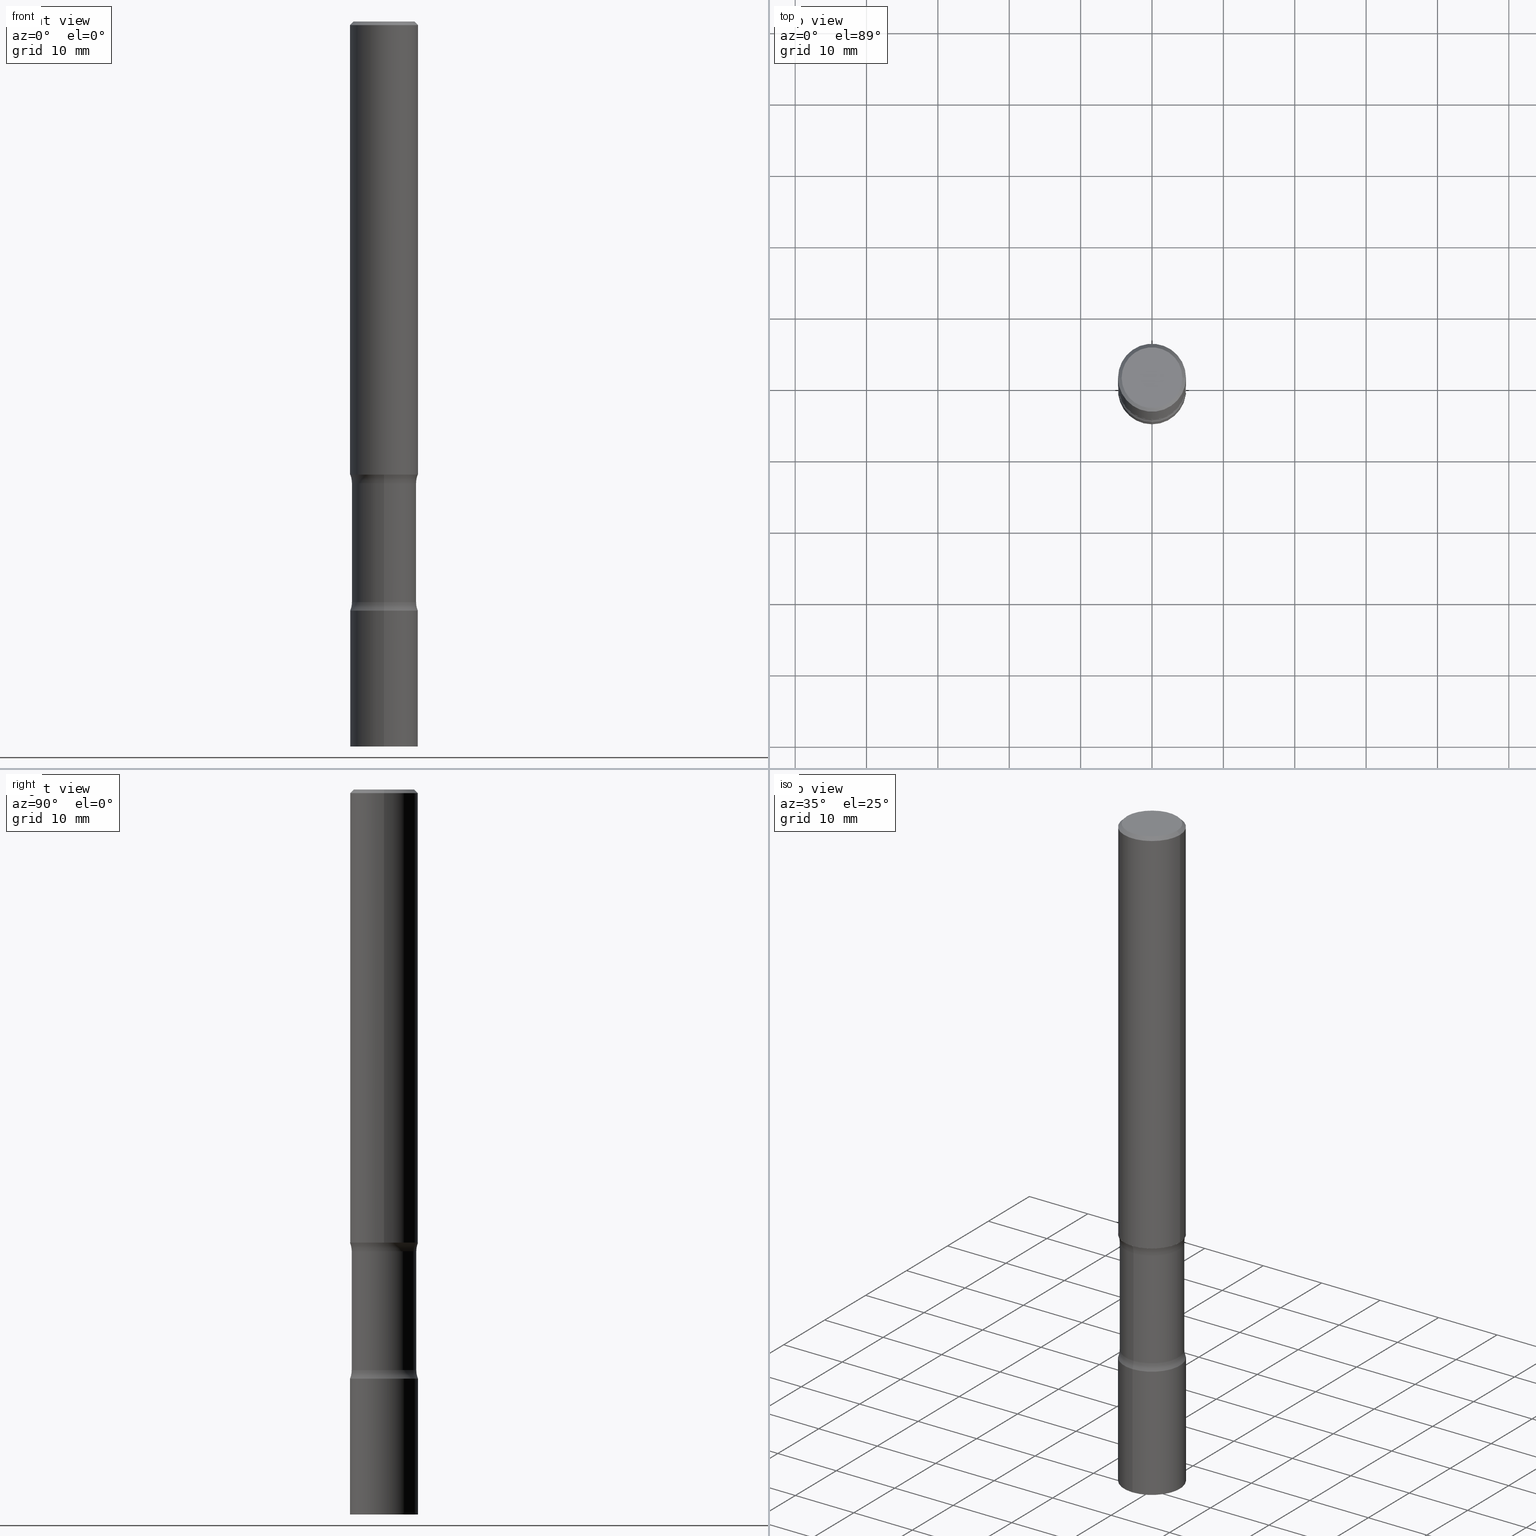
[diagram: canonical four-view strip — front | top / right | iso, engineering-drawing reading convention]
A machine part, canonical four-view strip (front | top / right | iso — engineering-drawing reading convention). The complete STEP part file that produces these views, byte-faithful:
ISO-10303-21;
HEADER;
FILE_DESCRIPTION (( 'STEP AP203' ),
    '1' );
FILE_NAME ('37831.STEP',
    '2024-03-11T13:26:31',
    ( '' ),
    ( '' ),
    'SwSTEP 2.0',
    'SolidWorks 2023',
    '' );
FILE_SCHEMA (( 'CONFIG_CONTROL_DESIGN' ));
ENDSEC;

DATA;
#1 = CIRCLE ( 'NONE', #12, 0.1875000000000001110 ) ;
#2 = ORIENTED_EDGE ( 'NONE', *, *, #37, .T. ) ;
#3 = DIRECTION ( 'NONE',  ( -1.000000000000000000, 6.982962677686265922E-15, -4.883557194083112340E-29 ) ) ;
#4 = PRODUCT_RELATED_PRODUCT_CATEGORY ( 'detail', '', ( #6 ) ) ;
#5 = DIRECTION ( 'NONE',  ( 2.572503713933696930E-29, -3.309560120569282320E-15, -1.000000000000000000 ) ) ;
#6 = PRODUCT ( '37831', '37831', '', ( #257 ) ) ;
#7 = CARTESIAN_POINT ( 'NONE',  ( 0.000000000000000000, 0.000000000000000000, 0.000000000000000000 ) ) ;
#8 = ORIENTED_EDGE ( 'NONE', *, *, #201, .F. ) ;
#9 = VERTEX_POINT ( 'NONE', #383 ) ;
#10 = ORIENTED_EDGE ( 'NONE', *, *, #300, .F. ) ;
#11 = DIRECTION ( 'NONE',  ( -2.445454306341708885E-29, 3.491502103444214095E-15, 1.000000000000000000 ) ) ;
#12 = AXIS2_PLACEMENT_3D ( 'NONE', #196, #200, #92 ) ;
#13 = CC_DESIGN_DATE_AND_TIME_ASSIGNMENT ( #103, #254, ( #108 ) ) ;
#14 = APPROVAL_PERSON_ORGANIZATION ( #209, #458, #494 ) ;
#15 = ORIENTED_EDGE ( 'NONE', *, *, #421, .T. ) ;
#16 = AXIS2_PLACEMENT_3D ( 'NONE', #223, #449, #39 ) ;
#17 =( CONVERSION_BASED_UNIT ( 'INCH', #95 ) LENGTH_UNIT ( ) NAMED_UNIT ( #374 ) );
#18 = ADVANCED_FACE ( 'NONE', ( #467 ), #182, .T. ) ;
#19 = APPLICATION_CONTEXT ( 'configuration controlled 3d designs of mechanical parts and assemblies' ) ;
#20 = DIRECTION ( 'NONE',  ( 2.572503713933696930E-29, -3.309560120569282320E-15, -1.000000000000000000 ) ) ;
#21 = ADVANCED_FACE ( 'NONE', ( #91 ), #140, .F. ) ;
#22 = CIRCLE ( 'NONE', #157, 0.1875000000000000555 ) ;
#23 = ADVANCED_FACE ( 'NONE', ( #372 ), #123, .F. ) ;
#24 = CARTESIAN_POINT ( 'NONE',  ( 9.877104281060825871E-29, -1.382955192662065686E-14, -4.000000000000000000 ) ) ;
#25 = VERTEX_POINT ( 'NONE', #110 ) ;
#26 = ORIENTED_EDGE ( 'NONE', *, *, #214, .F. ) ;
#27 = PERSON_AND_ORGANIZATION ( #431, #275 ) ;
#28 = CARTESIAN_POINT ( 'NONE',  ( 1.309305502066235948E-15, 0.1874999999999912847, -2.500000000000000444 ) ) ;
#29 = PRODUCT_DEFINITION ( 'UNKNOWN', '', #169, #379 ) ;
#30 = AXIS2_PLACEMENT_3D ( 'NONE', #228, #188, #229 ) ;
#31 = ORIENTED_EDGE ( 'NONE', *, *, #469, .T. ) ;
#32 = SECURITY_CLASSIFICATION_LEVEL ( 'unclassified' ) ;
#33 = CARTESIAN_POINT ( 'NONE',  ( 7.947726495610553875E-29, -1.134738183619369709E-14, -3.250000000000000000 ) ) ;
#34 = COORDINATED_UNIVERSAL_TIME_OFFSET ( 5, 0, .BEHIND. ) ;
#35 = FACE_OUTER_BOUND ( 'NONE', #410, .T. ) ;
#36 = ADVANCED_FACE ( 'NONE', ( #286 ), #292, .T. ) ;
#37 = EDGE_CURVE ( 'NONE', #435, #66, #274, .T. ) ;
#38 = CARTESIAN_POINT ( 'NONE',  ( 0.000000000000000000, 0.000000000000000000, 0.000000000000000000 ) ) ;
#39 = DIRECTION ( 'NONE',  ( 1.000000000000000000, -6.982962677686266711E-15, 0.000000000000000000 ) ) ;
#40 = CIRCLE ( 'NONE', #283, 0.1875000000000000555 ) ;
#41 = CARTESIAN_POINT ( 'NONE',  ( 0.000000000000000000, 0.000000000000000000, 0.000000000000000000 ) ) ;
#42 = EDGE_LOOP ( 'NONE', ( #213, #117 ) ) ;
#43 = PLANE ( 'NONE',  #245 ) ;
#44 = FACE_OUTER_BOUND ( 'NONE', #42, .T. ) ;
#45 = CC_DESIGN_PERSON_AND_ORGANIZATION_ASSIGNMENT ( #63, #73, ( #29 ) ) ;
#46 = LOCAL_TIME ( 9, 26, 31.00000000000000000, #368 ) ;
#47 = CARTESIAN_POINT ( 'NONE',  ( 2.116710561673711128E-15, 0.3031249999999910405, -2.547495887979910112 ) ) ;
#48 = FACE_OUTER_BOUND ( 'NONE', #244, .T. ) ;
#49 = ADVANCED_FACE ( 'NONE', ( #35 ), #407, .F. ) ;
#50 = ADVANCED_FACE ( 'NONE', ( #365 ), #508, .T. ) ;
#51 = CARTESIAN_POINT ( 'NONE',  ( 6.134439765035424862E-29, -9.031126753344712925E-15, -2.547495887979908780 ) ) ;
#52 = CIRCLE ( 'NONE', #429, 0.1875000000000000555 ) ;
#53 = PLANE ( 'NONE',  #226 ) ;
#54 = VECTOR ( 'NONE', #212, 39.37007874015748143 ) ;
#55 = DIRECTION ( 'NONE',  ( 1.000000000000000000, -6.860497997771530774E-15, 4.843026772000703432E-29 ) ) ;
#56 = EDGE_CURVE ( 'NONE', #246, #121, #322, .T. ) ;
#57 = EDGE_LOOP ( 'NONE', ( #349, #401, #422, #278 ) ) ;
#58 = CARTESIAN_POINT ( 'NONE',  ( 0.1874999999999999167, -1.309305502066174219E-15, 9.142831454617375408E-30 ) ) ;
#59 = AXIS2_PLACEMENT_3D ( 'NONE', #340, #5, #305 ) ;
#60 = VERTEX_POINT ( 'NONE', #100 ) ;
#61 = APPROVAL_ROLE ( '' ) ;
#62 = EDGE_CURVE ( 'NONE', #66, #435, #329, .T. ) ;
#63 = PERSON_AND_ORGANIZATION ( #431, #275 ) ;
#64 = CARTESIAN_POINT ( 'NONE',  ( -1.222026205852955807E-15, -0.1781250000000139389, -3.999999999999999556 ) ) ;
#65 = EDGE_LOOP ( 'NONE', ( #260, #168, #436, #261 ) ) ;
#66 = VERTEX_POINT ( 'NONE', #258 ) ;
#67 = PERSON_AND_ORGANIZATION ( #431, #275 ) ;
#68 = DIRECTION ( 'NONE',  ( 6.982962677686265133E-15, 1.000000000000000000, -3.067338098149347116E-15 ) ) ;
#69 = ORIENTED_EDGE ( 'NONE', *, *, #171, .F. ) ;
#70 = APPROVAL_PERSON_ORGANIZATION ( #406, #166, #61 ) ;
#71 = DIRECTION ( 'NONE',  ( 1.000000000000000000, 0.000000000000000000, 0.000000000000000000 ) ) ;
#72 = CARTESIAN_POINT ( 'NONE',  ( 6.140532058385174757E-29, -9.022402242516065970E-15, -2.547495887979908780 ) ) ;
#73 = PERSON_AND_ORGANIZATION_ROLE ( 'creator' ) ;
#74 = FACE_OUTER_BOUND ( 'NONE', #280, .T. ) ;
#75 = CYLINDRICAL_SURFACE ( 'NONE', #99, 0.1874999999999999167 ) ;
#76 = AXIS2_PLACEMENT_3D ( 'NONE', #324, #90, #272 ) ;
#77 = CC_DESIGN_APPROVAL ( #458, ( #169 ) ) ;
#78 = CONICAL_SURFACE ( 'NONE', #353, 0.1874999999999998057, 0.7853981633974480570 ) ;
#79 = ORIENTED_EDGE ( 'NONE', *, *, #412, .T. ) ;
#80 = CARTESIAN_POINT ( 'NONE',  ( -0.1874999999999998057, 1.239475875289310724E-15, -0.02000000000000000042 ) ) ;
#81 = CC_DESIGN_DATE_AND_TIME_ASSIGNMENT ( #443, #402, ( #29 ) ) ;
#82 = CARTESIAN_POINT ( 'NONE',  ( 1.169646248512448412E-15, 0.1674999999999998157, -5.848231242562262767E-16 ) ) ;
#83 = CARTESIAN_POINT ( 'NONE',  ( -1.286343374582082690E-15, -0.1875000000000113798, -3.249999999999999556 ) ) ;
#84 = ORIENTED_EDGE ( 'NONE', *, *, #266, .T. ) ;
#85 = PLANE ( 'NONE',  #450 ) ;
#86 = ORIENTED_EDGE ( 'NONE', *, *, #469, .F. ) ;
#87 = CC_DESIGN_PERSON_AND_ORGANIZATION_ASSIGNMENT ( #27, #490, ( #6 ) ) ;
#88 = EDGE_LOOP ( 'NONE', ( #291, #484, #96, #474 ) ) ;
#89 = DIRECTION ( 'NONE',  ( -2.445468806185136597E-29, 3.491481338843145583E-15, 1.000000000000000000 ) ) ;
#90 = DIRECTION ( 'NONE',  ( 2.572503713933696369E-29, -3.309560120569282320E-15, -1.000000000000000000 ) ) ;
#91 = FACE_OUTER_BOUND ( 'NONE', #446, .T. ) ;
#92 = DIRECTION ( 'NONE',  ( 6.982962677686266711E-15, 1.000000000000000000, -2.913971193241879189E-15 ) ) ;
#93 = EDGE_CURVE ( 'NONE', #202, #309, #52, .T. ) ;
#94 = EDGE_LOOP ( 'NONE', ( #317, #84, #172, #131 ) ) ;
#95 = LENGTH_MEASURE_WITH_UNIT ( LENGTH_MEASURE( 0.02539999999999999897 ), #273 );
#96 = ORIENTED_EDGE ( 'NONE', *, *, #327, .T. ) ;
#97 = DIRECTION ( 'NONE',  ( -6.982962677686265922E-15, -1.000000000000000000, 2.913971193241880372E-15 ) ) ;
#98 = AXIS2_PLACEMENT_3D ( 'NONE', #295, #453, #224 ) ;
#99 = AXIS2_PLACEMENT_3D ( 'NONE', #41, #137, #441 ) ;
#100 = CARTESIAN_POINT ( 'NONE',  ( 1.332267629550276595E-15, 0.1874999999999860389, -4.000000000000000888 ) ) ;
#101 = LINE ( 'NONE', #403, #178 ) ;
#102 = ORIENTED_EDGE ( 'NONE', *, *, #93, .T. ) ;
#103 = DATE_AND_TIME ( #221, #386 ) ;
#104 = FACE_OUTER_BOUND ( 'NONE', #88, .T. ) ;
#105 = VECTOR ( 'NONE', #132, 39.37007874015748143 ) ;
#106 = CIRCLE ( 'NONE', #269, 0.1875000000000001110 ) ;
#107 = EDGE_CURVE ( 'NONE', #363, #248, #101, .T. ) ;
#108 = SECURITY_CLASSIFICATION ( '', '', #32 ) ;
#109 = DIRECTION ( 'NONE',  ( -6.982962677686265922E-15, -1.000000000000000000, 3.491502103444214095E-15 ) ) ;
#110 = CARTESIAN_POINT ( 'NONE',  ( 0.1674999999999998157, -1.252653207992877105E-15, 8.469775550109232378E-30 ) ) ;
#111 = EDGE_CURVE ( 'NONE', #309, #202, #479, .T. ) ;
#112 = DIRECTION ( 'NONE',  ( 2.445468806185136597E-29, -3.491481338843145583E-15, -1.000000000000000000 ) ) ;
#113 = DIRECTION ( 'NONE',  ( 6.860497997771529985E-15, 1.000000000000000000, 0.000000000000000000 ) ) ;
#114 = VECTOR ( 'NONE', #415, 39.37007874015748143 ) ;
#115 = DIRECTION ( 'NONE',  ( -6.982962677686267499E-15, -1.000000000000000000, 0.000000000000000000 ) ) ;
#116 = DIRECTION ( 'NONE',  ( -6.982962677686265922E-15, -1.000000000000000000, 2.913971193241879977E-15 ) ) ;
#117 = ORIENTED_EDGE ( 'NONE', *, *, #300, .T. ) ;
#118 = CARTESIAN_POINT ( 'NONE',  ( -0.1874999999999999167, 1.332267629550187257E-15, -9.223003294227943787E-30 ) ) ;
#119 = AXIS2_PLACEMENT_3D ( 'NONE', #276, #55, #243 ) ;
#120 = EDGE_LOOP ( 'NONE', ( #156, #310 ) ) ;
#121 = VERTEX_POINT ( 'NONE', #457 ) ;
#122 = CARTESIAN_POINT ( 'NONE',  ( 9.781875224740546387E-29, -1.396592535537258233E-14, -4.000000000000000000 ) ) ;
#123 = PLANE ( 'NONE',  #282 ) ;
#124 = DIRECTION ( 'NONE',  ( -2.445454306341708885E-29, 3.491502103444214095E-15, 1.000000000000000000 ) ) ;
#125 = EDGE_CURVE ( 'NONE', #60, #363, #315, .T. ) ;
#126 = CIRCLE ( 'NONE', #16, 0.1874999999999998057 ) ;
#127 = CARTESIAN_POINT ( 'NONE',  ( 9.781817225366835538E-29, -1.396600841377685480E-14, -4.000000000000000000 ) ) ;
#128 = CC_DESIGN_APPROVAL ( #166, ( #29 ) ) ;
#129 = DIRECTION ( 'NONE',  ( -2.572503713933696369E-29, 3.309560120569282320E-15, 1.000000000000000000 ) ) ;
#130 = CARTESIAN_POINT ( 'NONE',  ( 7.825543147385660996E-29, -1.119019133944436529E-14, -3.202504112020091664 ) ) ;
#131 = ORIENTED_EDGE ( 'NONE', *, *, #421, .F. ) ;
#132 = DIRECTION ( 'NONE',  ( -2.445468806185136877E-29, 3.491481338843145188E-15, 1.000000000000000000 ) ) ;
#133 = ADVANCED_FACE ( 'NONE', ( #74 ), #227, .F. ) ;
#134 = ORIENTED_EDGE ( 'NONE', *, *, #171, .T. ) ;
#135 = ORIENTED_EDGE ( 'NONE', *, *, #62, .F. ) ;
#136 = AXIS2_PLACEMENT_3D ( 'NONE', #409, #180, #400 ) ;
#137 = DIRECTION ( 'NONE',  ( -2.445468806185136597E-29, 3.491481338843145583E-15, 1.000000000000000000 ) ) ;
#138 = CIRCLE ( 'NONE', #256, 0.1674999999999998157 ) ;
#139 = APPROVAL_PERSON_ORGANIZATION ( #497, #355, #293 ) ;
#140 = TOROIDAL_SURFACE ( 'NONE', #98, 0.3031250000000000888, 0.1250000000000000555 ) ;
#141 = APPROVAL_STATUS ( 'not_yet_approved' ) ;
#142 = DIRECTION ( 'NONE',  ( -2.445468806185136597E-29, 3.491481338843145583E-15, 1.000000000000000000 ) ) ;
#143 = ORIENTED_EDGE ( 'NONE', *, *, #336, .T. ) ;
#144 = ORIENTED_EDGE ( 'NONE', *, *, #501, .T. ) ;
#145 = ADVANCED_BREP_SHAPE_REPRESENTATION ( '37831', ( #391, #234, #230, #430 ), #294 ) ;
#146 = PERSON_AND_ORGANIZATION_ROLE ( 'creator' ) ;
#147 = DIRECTION ( 'NONE',  ( 6.982962677686266711E-15, 1.000000000000000000, -3.309560120569282320E-15 ) ) ;
#148 = APPROVAL_STATUS ( 'not_yet_approved' ) ;
#149 = CARTESIAN_POINT ( 'NONE',  ( 0.000000000000000000, 0.000000000000000000, 0.000000000000000000 ) ) ;
#150 = CARTESIAN_POINT ( 'NONE',  ( 6.140532058385174757E-29, -9.022402242516065970E-15, -2.547495887979908780 ) ) ;
#151 = TOROIDAL_SURFACE ( 'NONE', #303, 0.3031250000000000888, 0.1250000000000000555 ) ;
#152 = DATE_AND_TIME ( #486, #314 ) ;
#153 = DIRECTION ( 'NONE',  ( 2.572503713933696930E-29, -3.309560120569282320E-15, -1.000000000000000000 ) ) ;
#154 = CARTESIAN_POINT ( 'NONE',  ( -0.1674999999999998157, 1.204561061900879469E-15, -8.301862719484101980E-30 ) ) ;
#155 = DIRECTION ( 'NONE',  ( 1.000000000000000000, -6.860497997771530774E-15, 4.843026772000703432E-29 ) ) ;
#156 = ORIENTED_EDGE ( 'NONE', *, *, #308, .T. ) ;
#157 = AXIS2_PLACEMENT_3D ( 'NONE', #466, #346, #116 ) ;
#158 = ORIENTED_EDGE ( 'NONE', *, *, #482, .T. ) ;
#159 = DIRECTION ( 'NONE',  ( -2.445468806185136597E-29, 3.491481338843145583E-15, 1.000000000000000000 ) ) ;
#160 = DIRECTION ( 'NONE',  ( -6.982962677686265922E-15, -1.000000000000000000, 2.913971193241879977E-15 ) ) ;
#161 = EDGE_CURVE ( 'NONE', #476, #9, #126, .T. ) ;
#162 = DIRECTION ( 'NONE',  ( 2.572503713933696930E-29, -3.309560120569282320E-15, -1.000000000000000000 ) ) ;
#163 = AXIS2_PLACEMENT_3D ( 'NONE', #195, #348, #471 ) ;
#164 = CARTESIAN_POINT ( 'NONE',  ( 0.000000000000000000, 0.000000000000000000, 0.000000000000000000 ) ) ;
#165 = CARTESIAN_POINT ( 'NONE',  ( -1.309305502066077189E-15, -0.1875000000000139888, -3.999999999999999556 ) ) ;
#166 = APPROVAL ( #141, 'UNSPECIFIED' ) ;
#167 = CYLINDRICAL_SURFACE ( 'NONE', #352, 0.1781250000000000888 ) ;
#168 = ORIENTED_EDGE ( 'NONE', *, *, #239, .T. ) ;
#169 = PRODUCT_DEFINITION_FORMATION_WITH_SPECIFIED_SOURCE ( 'ANY', '', #6, .NOT_KNOWN. ) ;
#170 = LINE ( 'NONE', #58, #105 ) ;
#171 = EDGE_CURVE ( 'NONE', #60, #426, #503, .T. ) ;
#172 = ORIENTED_EDGE ( 'NONE', *, *, #161, .F. ) ;
#173 = DIRECTION ( 'NONE',  ( 6.982962677686265133E-15, 1.000000000000000000, -3.067338098149346722E-15 ) ) ;
#174 = EDGE_LOOP ( 'NONE', ( #211, #361 ) ) ;
#175 = APPLICATION_PROTOCOL_DEFINITION ( 'international standard', 'config_control_design', 1994, #19 ) ;
#176 = DIRECTION ( 'NONE',  ( -2.445468806185136597E-29, 3.491481338843145583E-15, 1.000000000000000000 ) ) ;
#177 = CIRCLE ( 'NONE', #242, 0.1875000000000000278 ) ;
#178 = VECTOR ( 'NONE', #376, 39.37007874015748143 ) ;
#179 = ADVANCED_FACE ( 'NONE', ( #104 ), #78, .T. ) ;
#180 = DIRECTION ( 'NONE',  ( -2.445454306341708885E-29, 3.491502103444214095E-15, 1.000000000000000000 ) ) ;
#181 = APPROVAL_DATE_TIME ( #362, #458 ) ;
#182 = CYLINDRICAL_SURFACE ( 'NONE', #302, 0.1875000000000000555 ) ;
#183 = DIRECTION ( 'NONE',  ( 1.000000000000000000, -6.982962677686265922E-15, 4.876176775795935793E-29 ) ) ;
#184 = PERSON_AND_ORGANIZATION ( #431, #275 ) ;
#185 = CARTESIAN_POINT ( 'NONE',  ( 1.332267629550188046E-15, 0.1875000000000000555, -6.546566443957903155E-16 ) ) ;
#186 = ADVANCED_FACE ( 'NONE', ( #259 ), #75, .T. ) ;
#187 = DIRECTION ( 'NONE',  ( 6.982962677686265922E-15, 1.000000000000000000, -2.913971193241879977E-15 ) ) ;
#188 = DIRECTION ( 'NONE',  ( 2.572503713933696930E-29, -3.309560120569282320E-15, -1.000000000000000000 ) ) ;
#189 = DIRECTION ( 'NONE',  ( 2.445454306341708044E-29, -3.491502103444214490E-15, -1.000000000000000000 ) ) ;
#190 = LOCAL_TIME ( 9, 26, 31.00000000000000000, #440 ) ;
#191 = PRODUCT_DEFINITION_SHAPE ( 'NONE', 'NONE',  #29 ) ;
#192 = DIRECTION ( 'NONE',  ( 0.7071067811865473507, -7.319954787623256045E-15, -0.7071067811865476838 ) ) ;
#193 = ORIENTED_EDGE ( 'NONE', *, *, #266, .F. ) ;
#194 = EDGE_CURVE ( 'NONE', #66, #357, #249, .T. ) ;
#195 = CARTESIAN_POINT ( 'NONE',  ( 7.831623907624765469E-29, -1.118148334468659010E-14, -3.202504112020091664 ) ) ;
#196 = CARTESIAN_POINT ( 'NONE',  ( 6.018348710160281878E-29, -8.865211745766734169E-15, -2.500000000000000000 ) ) ;
#197 = VERTEX_POINT ( 'NONE', #28 ) ;
#198 = VECTOR ( 'NONE', #217, 39.37007874015748143 ) ;
#199 = AXIS2_PLACEMENT_3D ( 'NONE', #164, #247, #478 ) ;
#200 = DIRECTION ( 'NONE',  ( 2.572503713933696930E-29, -3.309560120569282320E-15, -1.000000000000000000 ) ) ;
#201 = EDGE_CURVE ( 'NONE', #202, #357, #438, .T. ) ;
#202 = VERTEX_POINT ( 'NONE', #83 ) ;
#203 = ORIENTED_EDGE ( 'NONE', *, *, #475, .F. ) ;
#204 = CARTESIAN_POINT ( 'NONE',  ( 0.000000000000000000, 0.000000000000000000, 0.000000000000000000 ) ) ;
#205 = ORIENTED_EDGE ( 'NONE', *, *, #56, .T. ) ;
#206 =( NAMED_UNIT ( * ) PLANE_ANGLE_UNIT ( ) SI_UNIT ( $, .RADIAN. ) );
#207 = TOROIDAL_SURFACE ( 'NONE', #163, 0.3031249999999999778, 0.1249999999999999029 ) ;
#208 = CARTESIAN_POINT ( 'NONE',  ( 1.243840226962945341E-15, 0.1781249999999889311, -3.202504112020092553 ) ) ;
#209 = PERSON_AND_ORGANIZATION ( #431, #275 ) ;
#210 = EDGE_LOOP ( 'NONE', ( #460, #102 ) ) ;
#211 = ORIENTED_EDGE ( 'NONE', *, *, #306, .F. ) ;
#212 = DIRECTION ( 'NONE',  ( 2.572503713933696930E-29, -3.309560120569282320E-15, -1.000000000000000000 ) ) ;
#213 = ORIENTED_EDGE ( 'NONE', *, *, #232, .T. ) ;
#214 = EDGE_CURVE ( 'NONE', #9, #476, #480, .T. ) ;
#215 = ORIENTED_EDGE ( 'NONE', *, *, #336, .F. ) ;
#216 = PERSON_AND_ORGANIZATION_ROLE ( 'design_supplier' ) ;
#217 = DIRECTION ( 'NONE',  ( -2.445454306341709165E-29, 3.491502103444214490E-15, 1.000000000000000000 ) ) ;
#218 = CIRCLE ( 'NONE', #119, 0.1250000000000000278 ) ;
#219 = ADVANCED_FACE ( 'NONE', ( #44 ), #43, .F. ) ;
#220 = CARTESIAN_POINT ( 'NONE',  ( 6.113672015462842613E-29, -8.728703347107864943E-15, -2.500000000000000000 ) ) ;
#221 = CALENDAR_DATE ( 2024, 11, 3 ) ;
#222 = DIRECTION ( 'NONE',  ( -2.445454306341708885E-29, 3.491502103444214095E-15, 1.000000000000000000 ) ) ;
#223 = CARTESIAN_POINT ( 'NONE',  ( 4.890937612370273159E-31, -6.982962677686291609E-17, -0.02000000000000000042 ) ) ;
#224 = DIRECTION ( 'NONE',  ( 6.982962677686266711E-15, 1.000000000000000000, -3.309560120569282320E-15 ) ) ;
#225 = CARTESIAN_POINT ( 'NONE',  ( 4.890937612370273159E-31, -6.982962677686291609E-17, -0.02000000000000000042 ) ) ;
#226 = AXIS2_PLACEMENT_3D ( 'NONE', #122, #432, #395 ) ;
#227 = TOROIDAL_SURFACE ( 'NONE', #377, 0.3031249999999999778, 0.1249999999999999029 ) ;
#228 = CARTESIAN_POINT ( 'NONE',  ( 7.825543147385660996E-29, -1.119019133944436529E-14, -3.202504112020091664 ) ) ;
#229 = DIRECTION ( 'NONE',  ( 6.982962677686265133E-15, 1.000000000000000000, -3.067338098149345539E-15 ) ) ;
#230 = MANIFOLD_SOLID_BREP ( 'Body-Move/Copy2[4]', #404 ) ;
#231 = DIRECTION ( 'NONE',  ( 1.000000000000000000, -6.982962677686266711E-15, 0.000000000000000000 ) ) ;
#232 = EDGE_CURVE ( 'NONE', #248, #426, #40, .T. ) ;
#233 = VECTOR ( 'NONE', #192, 39.37007874015748143 ) ;
#234 = MANIFOLD_SOLID_BREP ( 'Body-Move/Copy2[2]', #489 ) ;
#235 = DIRECTION ( 'NONE',  ( -1.000000000000000000, 6.982962677686265922E-15, -4.876176775795935793E-29 ) ) ;
#236 = ORIENTED_EDGE ( 'NONE', *, *, #287, .F. ) ;
#237 = CARTESIAN_POINT ( 'NONE',  ( -2.079588455574416777E-15, -0.3031250000000111355, -3.202504112020090776 ) ) ;
#238 = ORIENTED_EDGE ( 'NONE', *, *, #194, .T. ) ;
#239 = EDGE_CURVE ( 'NONE', #25, #476, #301, .T. ) ;
#240 = DIRECTION ( 'NONE',  ( 1.000000000000000000, -6.982962677686266711E-15, 0.000000000000000000 ) ) ;
#241 = AXIS2_PLACEMENT_3D ( 'NONE', #225, #444, #328 ) ;
#242 = AXIS2_PLACEMENT_3D ( 'NONE', #319, #89, #240 ) ;
#243 = DIRECTION ( 'NONE',  ( 6.860497997771532351E-15, 1.000000000000000000, 0.000000000000000000 ) ) ;
#244 = EDGE_LOOP ( 'NONE', ( #417, #481, #445, #507 ) ) ;
#245 = AXIS2_PLACEMENT_3D ( 'NONE', #506, #189, #414 ) ;
#246 = VERTEX_POINT ( 'NONE', #382 ) ;
#247 = DIRECTION ( 'NONE',  ( -2.445468806185136597E-29, 3.491481338843145583E-15, 1.000000000000000000 ) ) ;
#248 = VERTEX_POINT ( 'NONE', #262 ) ;
#249 = LINE ( 'NONE', #64, #54 ) ;
#250 = ADVANCED_FACE ( 'NONE', ( #268 ), #85, .F. ) ;
#251 = APPLICATION_PROTOCOL_DEFINITION ( 'international standard', 'config_control_design', 1994, #468 ) ;
#252 = DIRECTION ( 'NONE',  ( 2.572503713933696930E-29, -3.309560120569282320E-15, -1.000000000000000000 ) ) ;
#253 = EDGE_LOOP ( 'NONE', ( #193, #205, #15, #26 ) ) ;
#254 = DATE_TIME_ROLE ( 'classification_date' ) ;
#255 = DIRECTION ( 'NONE',  ( -1.000000000000000000, 6.982962677686266711E-15, 0.000000000000000000 ) ) ;
#256 = AXIS2_PLACEMENT_3D ( 'NONE', #7, #389, #270 ) ;
#257 = MECHANICAL_CONTEXT ( 'NONE', #468, 'mechanical' ) ;
#258 = CARTESIAN_POINT ( 'NONE',  ( -1.254184790217548239E-15, -0.1781250000000090816, -2.547495887979908336 ) ) ;
#259 = FACE_OUTER_BOUND ( 'NONE', #253, .T. ) ;
#260 = ORIENTED_EDGE ( 'NONE', *, *, #360, .F. ) ;
#261 = ORIENTED_EDGE ( 'NONE', *, *, #327, .F. ) ;
#262 = CARTESIAN_POINT ( 'NONE',  ( -1.309305502066095728E-15, -0.1875000000000113798, -3.249999999999999556 ) ) ;
#263 = CIRCLE ( 'NONE', #385, 0.1781250000000001443 ) ;
#264 = CLOSED_SHELL ( 'NONE', ( #18, #427, #219, #378 ) ) ;
#265 = CARTESIAN_POINT ( 'NONE',  ( 6.018348710160281878E-29, -8.865211745766734169E-15, -2.500000000000000000 ) ) ;
#266 = EDGE_CURVE ( 'NONE', #246, #9, #343, .T. ) ;
#267 = DIRECTION ( 'NONE',  ( 6.982962677686266711E-15, 1.000000000000000000, -2.913971193241879189E-15 ) ) ;
#268 = FACE_OUTER_BOUND ( 'NONE', #120, .T. ) ;
#269 = AXIS2_PLACEMENT_3D ( 'NONE', #265, #162, #267 ) ;
#270 = DIRECTION ( 'NONE',  ( 1.000000000000000000, -6.982962677686266711E-15, 4.876176775795936914E-29 ) ) ;
#271 = ADVANCED_FACE ( 'NONE', ( #384 ), #418, .T. ) ;
#272 = DIRECTION ( 'NONE',  ( 6.982962677686265922E-15, 1.000000000000000000, -3.309560120569282320E-15 ) ) ;
#273 =( LENGTH_UNIT ( ) NAMED_UNIT ( * ) SI_UNIT ( $, .METRE. ) );
#274 = CIRCLE ( 'NONE', #312, 0.1781250000000000611 ) ;
#275 = ORGANIZATION ( 'UNSPECIFIED', 'UNSPECIFIED', '' ) ;
#276 = CARTESIAN_POINT ( 'NONE',  ( -2.079588455574434131E-15, -0.3031250000000090816, -2.547495887979907891 ) ) ;
#277 = EDGE_LOOP ( 'NONE', ( #2, #238, #86, #347 ) ) ;
#278 = ORIENTED_EDGE ( 'NONE', *, *, #332, .F. ) ;
#279 = CARTESIAN_POINT ( 'NONE',  ( 2.116710561673727694E-15, 0.3031249999999888201, -3.202504112020092997 ) ) ;
#280 = EDGE_LOOP ( 'NONE', ( #8, #433, #144, #31 ) ) ;
#281 = DIRECTION ( 'NONE',  ( -6.982962677686265922E-15, -1.000000000000000000, 3.491502103444214095E-15 ) ) ;
#282 = AXIS2_PLACEMENT_3D ( 'NONE', #366, #129, #455 ) ;
#283 = AXIS2_PLACEMENT_3D ( 'NONE', #307, #419, #160 ) ;
#284 = CALENDAR_DATE ( 2024, 11, 3 ) ;
#285 = CC_DESIGN_SECURITY_CLASSIFICATION ( #108, ( #169 ) ) ;
#286 = FACE_OUTER_BOUND ( 'NONE', #94, .T. ) ;
#287 = EDGE_CURVE ( 'NONE', #435, #197, #313, .T. ) ;
#288 = DATE_AND_TIME ( #284, #46 ) ;
#289 = CARTESIAN_POINT ( 'NONE',  ( 7.831623907624765469E-29, -1.118148334468659010E-14, -3.202504112020091664 ) ) ;
#290 = EDGE_LOOP ( 'NONE', ( #135, #158, #79, #236 ) ) ;
#291 = ORIENTED_EDGE ( 'NONE', *, *, #239, .F. ) ;
#292 = CYLINDRICAL_SURFACE ( 'NONE', #461, 0.1874999999999999167 ) ;
#293 = APPROVAL_ROLE ( '' ) ;
#294 =( GEOMETRIC_REPRESENTATION_CONTEXT ( 3 ) GLOBAL_UNCERTAINTY_ASSIGNED_CONTEXT ( ( #454 ) ) GLOBAL_UNIT_ASSIGNED_CONTEXT ( ( #17, #206, #326 ) ) REPRESENTATION_CONTEXT ( 'NONE', 'WORKASPACE' ) );
#295 = CARTESIAN_POINT ( 'NONE',  ( 6.134439765035424862E-29, -9.031126753344712925E-15, -2.547495887979908780 ) ) ;
#296 = DIRECTION ( 'NONE',  ( -2.438088387897960049E-29, 3.491481338843145188E-15, 1.000000000000000000 ) ) ;
#297 = APPROVAL_DATE_TIME ( #152, #355 ) ;
#298 = DIRECTION ( 'NONE',  ( 6.982962677686265133E-15, 1.000000000000000000, -3.067338098149347116E-15 ) ) ;
#299 = LINE ( 'NONE', #80, #114 ) ;
#300 = EDGE_CURVE ( 'NONE', #426, #248, #22, .T. ) ;
#301 = LINE ( 'NONE', #380, #233 ) ;
#302 = AXIS2_PLACEMENT_3D ( 'NONE', #149, #222, #109 ) ;
#303 = AXIS2_PLACEMENT_3D ( 'NONE', #51, #459, #505 ) ;
#304 = ADVANCED_FACE ( 'NONE', ( #48 ), #207, .F. ) ;
#305 = DIRECTION ( 'NONE',  ( 6.982962677686265133E-15, 1.000000000000000000, -3.067338098149346722E-15 ) ) ;
#306 = EDGE_CURVE ( 'NONE', #197, #381, #106, .T. ) ;
#307 = CARTESIAN_POINT ( 'NONE',  ( 7.947726495610553875E-29, -1.134738183619369709E-14, -3.250000000000000000 ) ) ;
#308 = EDGE_CURVE ( 'NONE', #321, #25, #138, .T. ) ;
#309 = VERTEX_POINT ( 'NONE', #423 ) ;
#310 = ORIENTED_EDGE ( 'NONE', *, *, #360, .T. ) ;
#311 = DIRECTION ( 'NONE',  ( -2.445468806185136877E-29, 3.491481338843145188E-15, 1.000000000000000000 ) ) ;
#312 = AXIS2_PLACEMENT_3D ( 'NONE', #72, #487, #298 ) ;
#313 = CIRCLE ( 'NONE', #499, 0.1250000000000000278 ) ;
#314 = LOCAL_TIME ( 9, 26, 31.00000000000000000, #452 ) ;
#315 = CIRCLE ( 'NONE', #136, 0.1875000000000000278 ) ;
#316 = CARTESIAN_POINT ( 'NONE',  ( 1.332267629550285667E-15, 0.1874999999999887035, -3.250000000000000444 ) ) ;
#317 = ORIENTED_EDGE ( 'NONE', *, *, #475, .T. ) ;
#318 = DIRECTION ( 'NONE',  ( 6.982962677686265133E-15, 1.000000000000000000, -3.067338098149345539E-15 ) ) ;
#319 = CARTESIAN_POINT ( 'NONE',  ( 6.113672015462842613E-29, -8.728703347107864943E-15, -2.500000000000000000 ) ) ;
#320 = ADVANCED_FACE ( 'NONE', ( #464 ), #151, .F. ) ;
#321 = VERTEX_POINT ( 'NONE', #154 ) ;
#322 = CIRCLE ( 'NONE', #344, 0.1875000000000000278 ) ;
#323 = AXIS2_PLACEMENT_3D ( 'NONE', #127, #11, #97 ) ;
#324 = CARTESIAN_POINT ( 'NONE',  ( 6.113672015462842613E-29, -8.728703347107864943E-15, -2.500000000000000000 ) ) ;
#325 = CYLINDRICAL_SURFACE ( 'NONE', #488, 0.1875000000000000555 ) ;
#326 =( NAMED_UNIT ( * ) SI_UNIT ( $, .STERADIAN. ) SOLID_ANGLE_UNIT ( ) );
#327 = EDGE_CURVE ( 'NONE', #321, #9, #299, .T. ) ;
#328 = DIRECTION ( 'NONE',  ( -1.000000000000000000, 6.982962677686266711E-15, 0.000000000000000000 ) ) ;
#329 = CIRCLE ( 'NONE', #394, 0.1781250000000000611 ) ;
#330 = ORIENTED_EDGE ( 'NONE', *, *, #125, .T. ) ;
#331 = PERSON_AND_ORGANIZATION_ROLE ( 'classification_officer' ) ;
#332 = EDGE_CURVE ( 'NONE', #357, #442, #338, .T. ) ;
#333 = PERSON_AND_ORGANIZATION ( #431, #275 ) ;
#334 = CARTESIAN_POINT ( 'NONE',  ( 7.947726495610553875E-29, -1.134738183619369709E-14, -3.250000000000000000 ) ) ;
#335 = EDGE_CURVE ( 'NONE', #435, #442, #341, .T. ) ;
#336 = EDGE_CURVE ( 'NONE', #363, #60, #358, .T. ) ;
#337 = COORDINATED_UNIVERSAL_TIME_OFFSET ( 5, 0, .BEHIND. ) ;
#338 = CIRCLE ( 'NONE', #30, 0.1781250000000001443 ) ;
#339 = CARTESIAN_POINT ( 'NONE',  ( 4.890937612370273159E-31, -6.982962677686291609E-17, -0.02000000000000000042 ) ) ;
#340 = CARTESIAN_POINT ( 'NONE',  ( 9.877104281060825871E-29, -1.382955192662065686E-14, -4.000000000000000000 ) ) ;
#341 = LINE ( 'NONE', #428, #462 ) ;
#342 = ORIENTED_EDGE ( 'NONE', *, *, #107, .T. ) ;
#343 = LINE ( 'NONE', #118, #393 ) ;
#344 = AXIS2_PLACEMENT_3D ( 'NONE', #369, #142, #491 ) ;
#345 = AXIS2_PLACEMENT_3D ( 'NONE', #237, #155, #113 ) ;
#346 = DIRECTION ( 'NONE',  ( -2.445454306341708885E-29, 3.491502103444214095E-15, 1.000000000000000000 ) ) ;
#347 = ORIENTED_EDGE ( 'NONE', *, *, #335, .F. ) ;
#348 = DIRECTION ( 'NONE',  ( 2.572503713933696930E-29, -3.309560120569282320E-15, -1.000000000000000000 ) ) ;
#349 = ORIENTED_EDGE ( 'NONE', *, *, #194, .F. ) ;
#350 = PLANE ( 'NONE',  #76 ) ;
#351 = AXIS2_PLACEMENT_3D ( 'NONE', #220, #296, #183 ) ;
#352 = AXIS2_PLACEMENT_3D ( 'NONE', #24, #473, #173 ) ;
#353 = AXIS2_PLACEMENT_3D ( 'NONE', #339, #112, #255 ) ;
#354 = CARTESIAN_POINT ( 'NONE',  ( -1.254184790217529701E-15, -0.1781250000000113298, -3.202504112020091220 ) ) ;
#355 = APPROVAL ( #148, 'UNSPECIFIED' ) ;
#356 = CARTESIAN_POINT ( 'NONE',  ( 1.243840226962927986E-15, 0.1781249999999910405, -2.547495887979909224 ) ) ;
#357 = VERTEX_POINT ( 'NONE', #354 ) ;
#358 = CIRCLE ( 'NONE', #323, 0.1875000000000000278 ) ;
#359 = CARTESIAN_POINT ( 'NONE',  ( 0.1874999999999998057, -1.356173001359023691E-15, -0.02000000000000000042 ) ) ;
#360 = EDGE_CURVE ( 'NONE', #25, #321, #413, .T. ) ;
#361 = ORIENTED_EDGE ( 'NONE', *, *, #412, .F. ) ;
#362 = DATE_AND_TIME ( #448, #397 ) ;
#363 = VERTEX_POINT ( 'NONE', #165 ) ;
#364 = DIRECTION ( 'NONE',  ( 0.000000000000000000, 0.000000000000000000, 1.000000000000000000 ) ) ;
#365 = FACE_OUTER_BOUND ( 'NONE', #65, .T. ) ;
#366 = CARTESIAN_POINT ( 'NONE',  ( 7.947773620101693940E-29, -1.134731435124022443E-14, -3.250000000000000000 ) ) ;
#367 = ORIENTED_EDGE ( 'NONE', *, *, #37, .F. ) ;
#368 = COORDINATED_UNIVERSAL_TIME_OFFSET ( 5, 0, .BEHIND. ) ;
#369 = CARTESIAN_POINT ( 'NONE',  ( 6.113672015462842613E-29, -8.728703347107864943E-15, -2.500000000000000000 ) ) ;
#370 = APPROVAL_DATE_TIME ( #288, #166 ) ;
#371 = CARTESIAN_POINT ( 'NONE',  ( 0.000000000000000000, 0.000000000000000000, 0.000000000000000000 ) ) ;
#372 = FACE_OUTER_BOUND ( 'NONE', #210, .T. ) ;
#373 = DIRECTION ( 'NONE',  ( 6.982962677686265922E-15, 1.000000000000000000, -2.913971193241879977E-15 ) ) ;
#374 = DIMENSIONAL_EXPONENTS ( 1.000000000000000000, 0.000000000000000000, 0.000000000000000000, 0.000000000000000000, 0.000000000000000000, 0.000000000000000000, 0.000000000000000000 ) ;
#375 = AXIS2_PLACEMENT_3D ( 'NONE', #388, #159, #231 ) ;
#376 = DIRECTION ( 'NONE',  ( -2.445454306341709165E-29, 3.491502103444214490E-15, 1.000000000000000000 ) ) ;
#377 = AXIS2_PLACEMENT_3D ( 'NONE', #289, #252, #147 ) ;
#378 = ADVANCED_FACE ( 'NONE', ( #396 ), #53, .T. ) ;
#379 = DESIGN_CONTEXT ( 'detailed design', #19, 'design' ) ;
#380 = CARTESIAN_POINT ( 'NONE',  ( 0.1874999999999998057, -1.356173001359023691E-15, -0.02000000000000000042 ) ) ;
#381 = VERTEX_POINT ( 'NONE', #483 ) ;
#382 = CARTESIAN_POINT ( 'NONE',  ( -0.1874999999999999722, -3.066998857392173905E-15, -2.500000000000000000 ) ) ;
#383 = CARTESIAN_POINT ( 'NONE',  ( -0.1874999999999998057, 1.239475875289310724E-15, -0.02000000000000000042 ) ) ;
#384 = FACE_OUTER_BOUND ( 'NONE', #57, .T. ) ;
#385 = AXIS2_PLACEMENT_3D ( 'NONE', #130, #437, #318 ) ;
#386 = LOCAL_TIME ( 9, 26, 31.00000000000000000, #337 ) ;
#387 = CC_DESIGN_PERSON_AND_ORGANIZATION_ASSIGNMENT ( #333, #146, ( #169 ) ) ;
#388 = CARTESIAN_POINT ( 'NONE',  ( 4.890937612370273159E-31, -6.982962677686291609E-17, -0.02000000000000000042 ) ) ;
#389 = DIRECTION ( 'NONE',  ( -2.445468806185136597E-29, 3.491481338843145583E-15, 1.000000000000000000 ) ) ;
#390 = ORIENTED_EDGE ( 'NONE', *, *, #306, .T. ) ;
#391 = MANIFOLD_SOLID_BREP ( 'Body-Move/Copy2[1]', #264 ) ;
#392 = DIRECTION ( 'NONE',  ( -1.000000000000000000, 6.982962677686265922E-15, -4.883557194083112340E-29 ) ) ;
#393 = VECTOR ( 'NONE', #311, 39.37007874015748143 ) ;
#394 = AXIS2_PLACEMENT_3D ( 'NONE', #150, #411, #68 ) ;
#395 = DIRECTION ( 'NONE',  ( 6.982962677686265922E-15, 1.000000000000000000, -3.491502103444214490E-15 ) ) ;
#396 = FACE_OUTER_BOUND ( 'NONE', #504, .T. ) ;
#397 = LOCAL_TIME ( 9, 26, 31.00000000000000000, #34 ) ;
#398 = FACE_OUTER_BOUND ( 'NONE', #277, .T. ) ;
#399 = EDGE_LOOP ( 'NONE', ( #143, #134, #502, #496 ) ) ;
#400 = DIRECTION ( 'NONE',  ( -6.982962677686265922E-15, -1.000000000000000000, 2.913971193241880372E-15 ) ) ;
#401 = ORIENTED_EDGE ( 'NONE', *, *, #62, .T. ) ;
#402 = DATE_TIME_ROLE ( 'creation_date' ) ;
#403 = CARTESIAN_POINT ( 'NONE',  ( -1.309305502066175205E-15, -0.1875000000000000555, 6.546566443957903155E-16 ) ) ;
#404 = CLOSED_SHELL ( 'NONE', ( #416, #304, #320, #21, #425, #23, #133, #271 ) ) ;
#405 = ORIENTED_EDGE ( 'NONE', *, *, #125, .F. ) ;
#406 = PERSON_AND_ORGANIZATION ( #431, #275 ) ;
#407 = PLANE ( 'NONE',  #351 ) ;
#408 = APPROVAL_STATUS ( 'not_yet_approved' ) ;
#409 = CARTESIAN_POINT ( 'NONE',  ( 9.781817225366835538E-29, -1.396600841377685480E-14, -4.000000000000000000 ) ) ;
#410 = EDGE_LOOP ( 'NONE', ( #203, #439 ) ) ;
#411 = DIRECTION ( 'NONE',  ( 2.572503713933696930E-29, -3.309560120569282320E-15, -1.000000000000000000 ) ) ;
#412 = EDGE_CURVE ( 'NONE', #381, #197, #1, .T. ) ;
#413 = CIRCLE ( 'NONE', #199, 0.1674999999999998157 ) ;
#414 = DIRECTION ( 'NONE',  ( 6.982962677686265922E-15, 1.000000000000000000, -3.491502103444214490E-15 ) ) ;
#415 = DIRECTION ( 'NONE',  ( -0.7071067811865473507, 2.468850131082255088E-15, -0.7071067811865476838 ) ) ;
#416 = ADVANCED_FACE ( 'NONE', ( #398 ), #167, .T. ) ;
#417 = ORIENTED_EDGE ( 'NONE', *, *, #93, .F. ) ;
#418 = CYLINDRICAL_SURFACE ( 'NONE', #59, 0.1781250000000000888 ) ;
#419 = DIRECTION ( 'NONE',  ( -2.445454306341708885E-29, 3.491502103444214095E-15, 1.000000000000000000 ) ) ;
#420 = AXIS2_PLACEMENT_3D ( 'NONE', #279, #392, #434 ) ;
#421 = EDGE_CURVE ( 'NONE', #121, #476, #170, .T. ) ;
#422 = ORIENTED_EDGE ( 'NONE', *, *, #335, .T. ) ;
#423 = CARTESIAN_POINT ( 'NONE',  ( 1.309305502066254880E-15, 0.1874999999999887035, -3.250000000000000444 ) ) ;
#424 = FACE_OUTER_BOUND ( 'NONE', #492, .T. ) ;
#425 = ADVANCED_FACE ( 'NONE', ( #485 ), #350, .F. ) ;
#426 = VERTEX_POINT ( 'NONE', #316 ) ;
#427 = ADVANCED_FACE ( 'NONE', ( #424 ), #325, .T. ) ;
#428 = CARTESIAN_POINT ( 'NONE',  ( 1.243840226962965457E-15, 0.1781249999999862665, -4.000000000000000888 ) ) ;
#429 = AXIS2_PLACEMENT_3D ( 'NONE', #33, #153, #373 ) ;
#430 = AXIS2_PLACEMENT_3D ( 'NONE', #38, #364, #71 ) ;
#431 = PERSON ( 'UNSPECIFIED', 'UNSPECIFIED', 'UNSPECIFIED', ('UNSPECIFIED'), ('UNSPECIFIED'), ('UNSPECIFIED') ) ;
#432 = DIRECTION ( 'NONE',  ( 2.445454306341708044E-29, -3.491502103444214490E-15, -1.000000000000000000 ) ) ;
#433 = ORIENTED_EDGE ( 'NONE', *, *, #111, .F. ) ;
#434 = DIRECTION ( 'NONE',  ( -6.982962677686264344E-15, -1.000000000000000000, 0.000000000000000000 ) ) ;
#435 = VERTEX_POINT ( 'NONE', #356 ) ;
#436 = ORIENTED_EDGE ( 'NONE', *, *, #161, .T. ) ;
#437 = DIRECTION ( 'NONE',  ( 2.572503713933696930E-29, -3.309560120569282320E-15, -1.000000000000000000 ) ) ;
#438 = CIRCLE ( 'NONE', #345, 0.1249999999999999029 ) ;
#439 = ORIENTED_EDGE ( 'NONE', *, *, #56, .F. ) ;
#440 = COORDINATED_UNIVERSAL_TIME_OFFSET ( 5, 0, .BEHIND. ) ;
#441 = DIRECTION ( 'NONE',  ( 1.000000000000000000, -6.982962677686265922E-15, 4.876176775795935793E-29 ) ) ;
#442 = VERTEX_POINT ( 'NONE', #208 ) ;
#443 = DATE_AND_TIME ( #500, #190 ) ;
#444 = DIRECTION ( 'NONE',  ( 2.445468806185136597E-29, -3.491481338843145583E-15, -1.000000000000000000 ) ) ;
#445 = ORIENTED_EDGE ( 'NONE', *, *, #332, .T. ) ;
#446 = EDGE_LOOP ( 'NONE', ( #463, #367, #477, #390 ) ) ;
#447 = CC_DESIGN_PERSON_AND_ORGANIZATION_ASSIGNMENT ( #184, #331, ( #108 ) ) ;
#448 = CALENDAR_DATE ( 2024, 11, 3 ) ;
#449 = DIRECTION ( 'NONE',  ( -2.445468806185136597E-29, 3.491481338843145583E-15, 1.000000000000000000 ) ) ;
#450 = AXIS2_PLACEMENT_3D ( 'NONE', #82, #470, #235 ) ;
#451 = CC_DESIGN_APPROVAL ( #355, ( #108 ) ) ;
#452 = COORDINATED_UNIVERSAL_TIME_OFFSET ( 5, 0, .BEHIND. ) ;
#453 = DIRECTION ( 'NONE',  ( 2.572503713933696930E-29, -3.309560120569282320E-15, -1.000000000000000000 ) ) ;
#454 = UNCERTAINTY_MEASURE_WITH_UNIT (LENGTH_MEASURE( 1.000000000000000082E-05 ), #17, 'distance_accuracy_value', 'NONE');
#455 = DIRECTION ( 'NONE',  ( -6.982962677686265922E-15, -1.000000000000000000, 3.309560120569282320E-15 ) ) ;
#456 = SHAPE_DEFINITION_REPRESENTATION ( #191, #145 ) ;
#457 = CARTESIAN_POINT ( 'NONE',  ( 0.1875000000000000278, -1.003800884917403995E-14, -2.500000000000000000 ) ) ;
#458 = APPROVAL ( #408, 'UNSPECIFIED' ) ;
#459 = DIRECTION ( 'NONE',  ( 2.572503713933696930E-29, -3.309560120569282320E-15, -1.000000000000000000 ) ) ;
#460 = ORIENTED_EDGE ( 'NONE', *, *, #111, .T. ) ;
#461 = AXIS2_PLACEMENT_3D ( 'NONE', #371, #176, #495 ) ;
#462 = VECTOR ( 'NONE', #20, 39.37007874015748143 ) ;
#463 = ORIENTED_EDGE ( 'NONE', *, *, #482, .F. ) ;
#464 = FACE_OUTER_BOUND ( 'NONE', #290, .T. ) ;
#465 = AXIS2_PLACEMENT_3D ( 'NONE', #334, #498, #187 ) ;
#466 = CARTESIAN_POINT ( 'NONE',  ( 7.947726495610553875E-29, -1.134738183619369709E-14, -3.250000000000000000 ) ) ;
#467 = FACE_OUTER_BOUND ( 'NONE', #399, .T. ) ;
#468 = APPLICATION_CONTEXT ( 'configuration controlled 3d designs of mechanical parts and assemblies' ) ;
#469 = EDGE_CURVE ( 'NONE', #442, #357, #263, .T. ) ;
#470 = DIRECTION ( 'NONE',  ( 2.438088387897960049E-29, -3.491481338843145188E-15, -1.000000000000000000 ) ) ;
#471 = DIRECTION ( 'NONE',  ( 6.982962677686266711E-15, 1.000000000000000000, -3.309560120569282320E-15 ) ) ;
#472 = CIRCLE ( 'NONE', #420, 0.1249999999999999029 ) ;
#473 = DIRECTION ( 'NONE',  ( 2.572503713933696930E-29, -3.309560120569282320E-15, -1.000000000000000000 ) ) ;
#474 = ORIENTED_EDGE ( 'NONE', *, *, #214, .T. ) ;
#475 = EDGE_CURVE ( 'NONE', #121, #246, #177, .T. ) ;
#476 = VERTEX_POINT ( 'NONE', #359 ) ;
#477 = ORIENTED_EDGE ( 'NONE', *, *, #287, .T. ) ;
#478 = DIRECTION ( 'NONE',  ( 1.000000000000000000, -6.982962677686266711E-15, 4.876176775795936914E-29 ) ) ;
#479 = CIRCLE ( 'NONE', #465, 0.1875000000000000555 ) ;
#480 = CIRCLE ( 'NONE', #375, 0.1874999999999998057 ) ;
#481 = ORIENTED_EDGE ( 'NONE', *, *, #201, .T. ) ;
#482 = EDGE_CURVE ( 'NONE', #66, #381, #218, .T. ) ;
#483 = CARTESIAN_POINT ( 'NONE',  ( -1.286343374582102609E-15, -0.1875000000000090206, -2.499999999999999556 ) ) ;
#484 = ORIENTED_EDGE ( 'NONE', *, *, #308, .F. ) ;
#485 = FACE_OUTER_BOUND ( 'NONE', #174, .T. ) ;
#486 = CALENDAR_DATE ( 2024, 11, 3 ) ;
#487 = DIRECTION ( 'NONE',  ( 2.572503713933696930E-29, -3.309560120569282320E-15, -1.000000000000000000 ) ) ;
#488 = AXIS2_PLACEMENT_3D ( 'NONE', #204, #124, #281 ) ;
#489 = CLOSED_SHELL ( 'NONE', ( #36, #50, #179, #250, #49, #186 ) ) ;
#490 = PERSON_AND_ORGANIZATION_ROLE ( 'design_owner' ) ;
#491 = DIRECTION ( 'NONE',  ( 1.000000000000000000, -6.982962677686266711E-15, 0.000000000000000000 ) ) ;
#492 = EDGE_LOOP ( 'NONE', ( #69, #330, #342, #10 ) ) ;
#493 = CC_DESIGN_PERSON_AND_ORGANIZATION_ASSIGNMENT ( #67, #216, ( #169 ) ) ;
#494 = APPROVAL_ROLE ( '' ) ;
#495 = DIRECTION ( 'NONE',  ( 1.000000000000000000, -6.982962677686265922E-15, 4.876176775795935793E-29 ) ) ;
#496 = ORIENTED_EDGE ( 'NONE', *, *, #107, .F. ) ;
#497 = PERSON_AND_ORGANIZATION ( #431, #275 ) ;
#498 = DIRECTION ( 'NONE',  ( 2.572503713933696930E-29, -3.309560120569282320E-15, -1.000000000000000000 ) ) ;
#499 = AXIS2_PLACEMENT_3D ( 'NONE', #47, #3, #115 ) ;
#500 = CALENDAR_DATE ( 2024, 11, 3 ) ;
#501 = EDGE_CURVE ( 'NONE', #309, #442, #472, .T. ) ;
#502 = ORIENTED_EDGE ( 'NONE', *, *, #232, .F. ) ;
#503 = LINE ( 'NONE', #185, #198 ) ;
#504 = EDGE_LOOP ( 'NONE', ( #215, #405 ) ) ;
#505 = DIRECTION ( 'NONE',  ( 6.982962677686266711E-15, 1.000000000000000000, -3.309560120569282320E-15 ) ) ;
#506 = CARTESIAN_POINT ( 'NONE',  ( 7.947773620101693940E-29, -1.134731435124022443E-14, -3.250000000000000000 ) ) ;
#507 = ORIENTED_EDGE ( 'NONE', *, *, #501, .F. ) ;
#508 = CONICAL_SURFACE ( 'NONE', #241, 0.1874999999999998057, 0.7853981633974480570 ) ;
ENDSEC;
END-ISO-10303-21;
